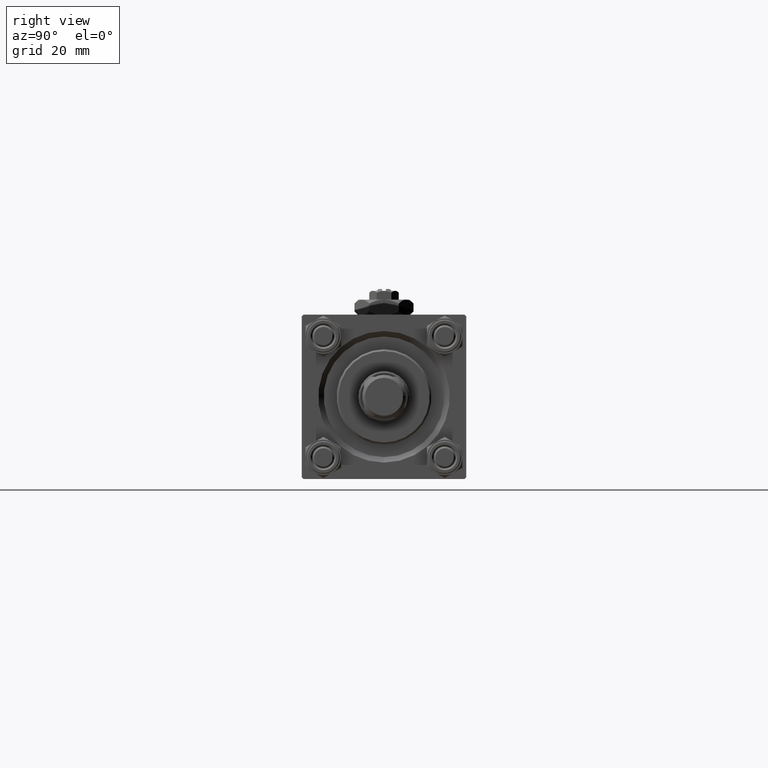
[diagram: clean part render]
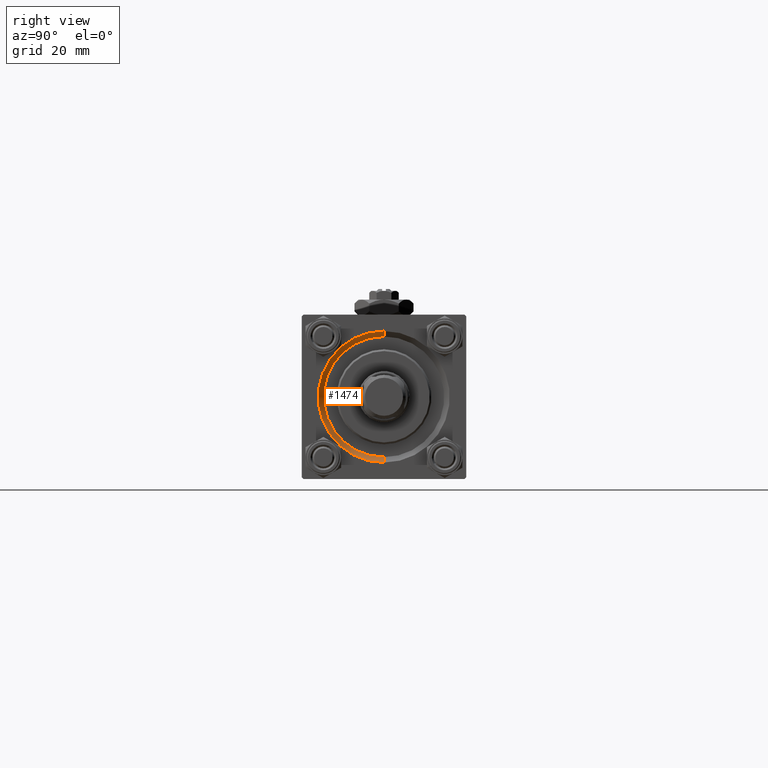
[diagram: same view with one face highlighted and labeled with its STEP entity id]
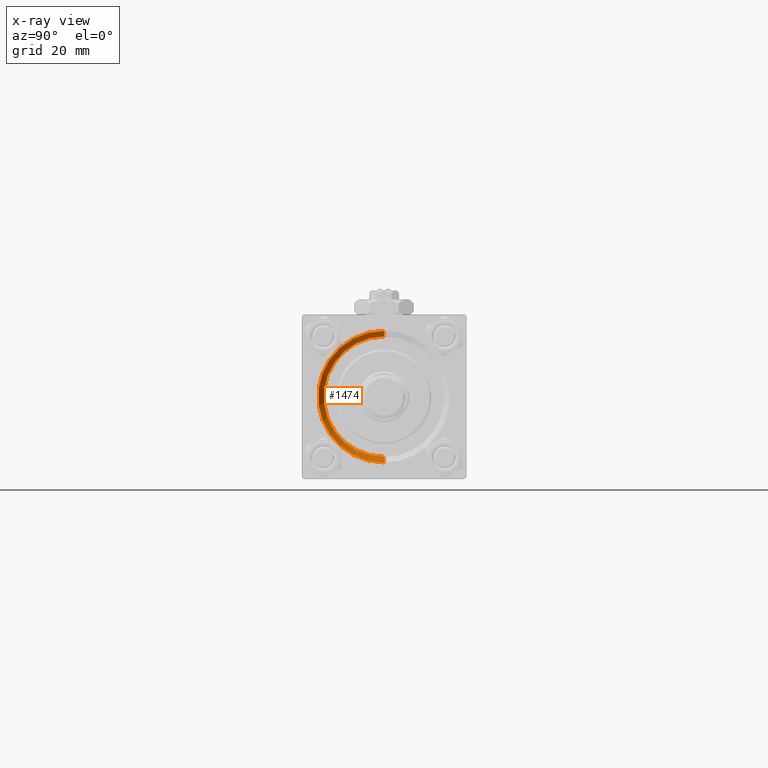
[diagram: x-ray of the same camera — body ghosted, the highlighted face saturated]
A machine part, right view. The second image highlights one B-rep face of the part: STEP entity #1474.
The next image is the same camera in x-ray: the body ghosted, the highlighted face saturated — about 0% of this face is hidden behind the body in this view.
In plain terms, the highlighted conical surface has half-angle 45 deg.
Its self-contained STEP definition (entity closure, byte-faithful):
#1474 = ADVANCED_FACE ( 'NONE', ( #29336 ), #41476, .F. ) ;
#8698 = CARTESIAN_POINT ( 'NONE',  ( 121.5000000000000142, 0.000000000000000000, -16.50000000000000000 ) ) ;
#10020 = CARTESIAN_POINT ( 'NONE',  ( 121.5000000000000142, 0.000000000000000000, -16.50000000000000000 ) ) ;
#12074 = ORIENTED_EDGE ( 'NONE', *, *, #17025, .F. ) ;
#13037 = DIRECTION ( 'NONE',  ( 0.000000000000000000, 0.000000000000000000, 1.000000000000000000 ) ) ;
#13392 = VERTEX_POINT ( 'NONE', #8698 ) ;
#16584 = EDGE_LOOP ( 'NONE', ( #33775, #25165, #12074, #47850 ) ) ;
#16882 = VERTEX_POINT ( 'NONE', #44379 ) ;
#17005 = DIRECTION ( 'NONE',  ( -1.000000000000000000, 0.000000000000000000, -0.000000000000000000 ) ) ;
#17025 = EDGE_CURVE ( 'NONE', #48235, #32390, #38279, .T. ) ;
#17313 = DIRECTION ( 'NONE',  ( 0.000000000000000000, 0.000000000000000000, 1.000000000000000000 ) ) ;
#17760 = CARTESIAN_POINT ( 'NONE',  ( 121.5000000000000142, 0.000000000000000000, 0.000000000000000000 ) ) ;
#17761 = EDGE_CURVE ( 'NONE', #13392, #48235, #46079, .T. ) ;
#17792 = LINE ( 'NONE', #45942, #45285 ) ;
#20047 = CIRCLE ( 'NONE', #24252, 16.50000000000000000 ) ;
#22128 = DIRECTION ( 'NONE',  ( 0.7071067811865474617, 0.000000000000000000, -0.7071067811865474617 ) ) ;
#24040 = VECTOR ( 'NONE', #22128, 1000.000000000000114 ) ;
#24252 = AXIS2_PLACEMENT_3D ( 'NONE', #26005, #37825, #17313 ) ;
#25165 = ORIENTED_EDGE ( 'NONE', *, *, #42524, .T. ) ;
#26005 = CARTESIAN_POINT ( 'NONE',  ( 121.5000000000000142, 0.000000000000000000, 0.000000000000000000 ) ) ;
#27199 = EDGE_CURVE ( 'NONE', #16882, #13392, #20047, .T. ) ;
#27455 = CARTESIAN_POINT ( 'NONE',  ( 123.0000000000000142, 2.204364238465235822E-15, 18.00000000000000355 ) ) ;
#29336 = FACE_OUTER_BOUND ( 'NONE', #16584, .T. ) ;
#32390 = VERTEX_POINT ( 'NONE', #27455 ) ;
#33775 = ORIENTED_EDGE ( 'NONE', *, *, #27199, .F. ) ;
#37825 = DIRECTION ( 'NONE',  ( 1.000000000000000000, 0.000000000000000000, 0.000000000000000000 ) ) ;
#38279 = CIRCLE ( 'NONE', #43312, 18.00000000000000355 ) ;
#40903 = DIRECTION ( 'NONE',  ( 0.000000000000000000, 0.000000000000000000, -1.000000000000000000 ) ) ;
#41476 = CONICAL_SURFACE ( 'NONE', #49882, 16.50000000000000000, 0.7853981633974482790 ) ;
#41984 = DIRECTION ( 'NONE',  ( 0.7071067811865474617, 8.659560562354932858E-17, 0.7071067811865474617 ) ) ;
#42524 = EDGE_CURVE ( 'NONE', #16882, #32390, #17792, .T. ) ;
#43312 = AXIS2_PLACEMENT_3D ( 'NONE', #45148, #17005, #13037 ) ;
#44379 = CARTESIAN_POINT ( 'NONE',  ( 121.5000000000000142, 2.020667218593133100E-15, 16.50000000000000000 ) ) ;
#45148 = CARTESIAN_POINT ( 'NONE',  ( 123.0000000000000142, 0.000000000000000000, 0.000000000000000000 ) ) ;
#45285 = VECTOR ( 'NONE', #41984, 1000.000000000000114 ) ;
#45378 = DIRECTION ( 'NONE',  ( 1.000000000000000000, 0.000000000000000000, 0.000000000000000000 ) ) ;
#45615 = CARTESIAN_POINT ( 'NONE',  ( 123.0000000000000142, 0.000000000000000000, -18.00000000000000355 ) ) ;
#45942 = CARTESIAN_POINT ( 'NONE',  ( 121.5000000000000142, 2.020667218593133100E-15, 16.50000000000000000 ) ) ;
#46079 = LINE ( 'NONE', #10020, #24040 ) ;
#47850 = ORIENTED_EDGE ( 'NONE', *, *, #17761, .F. ) ;
#48235 = VERTEX_POINT ( 'NONE', #45615 ) ;
#49882 = AXIS2_PLACEMENT_3D ( 'NONE', #17760, #45378, #40903 ) ;